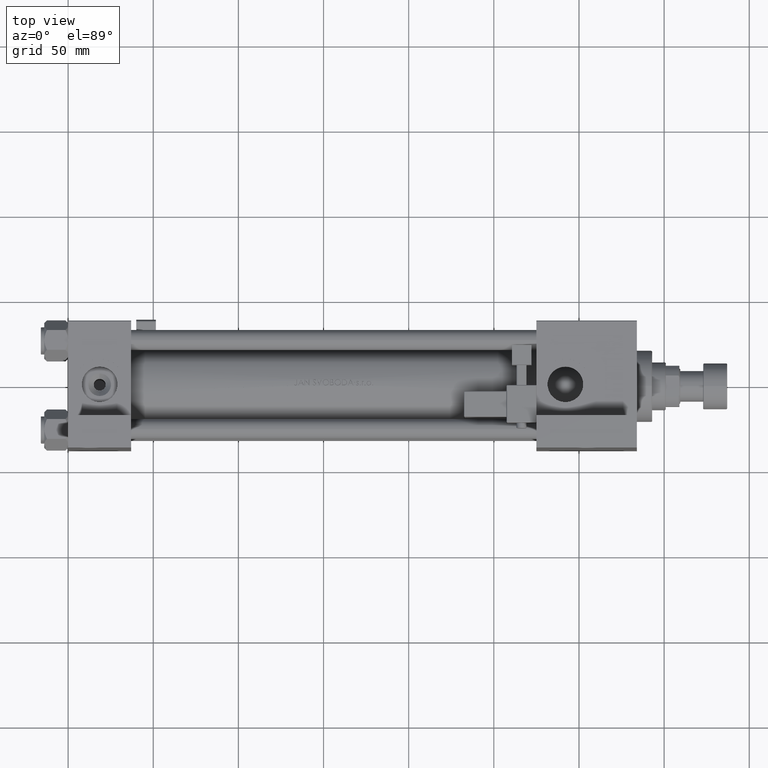
[diagram: clean part render]
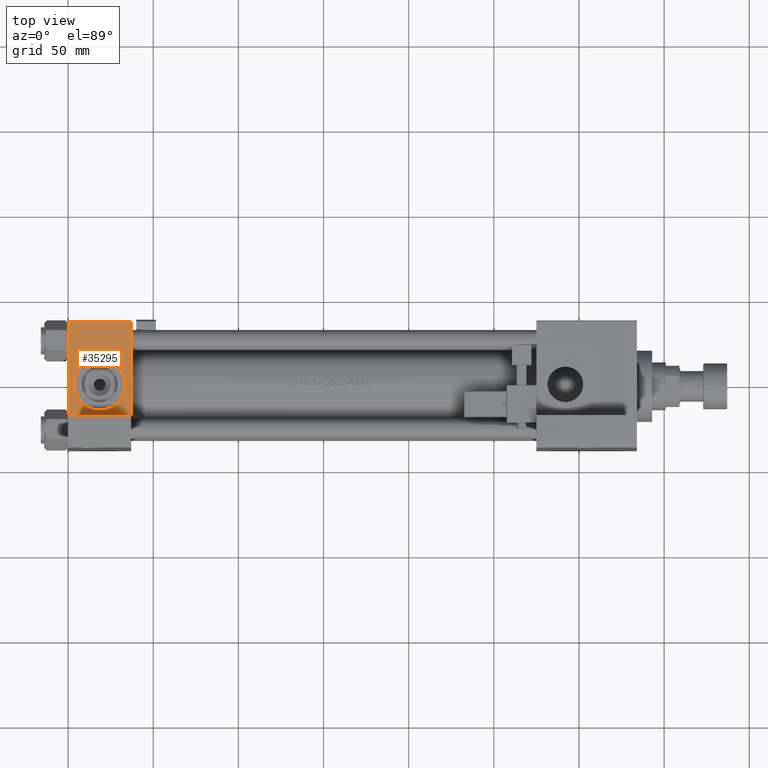
[diagram: same view with one face highlighted and labeled with its STEP entity id]
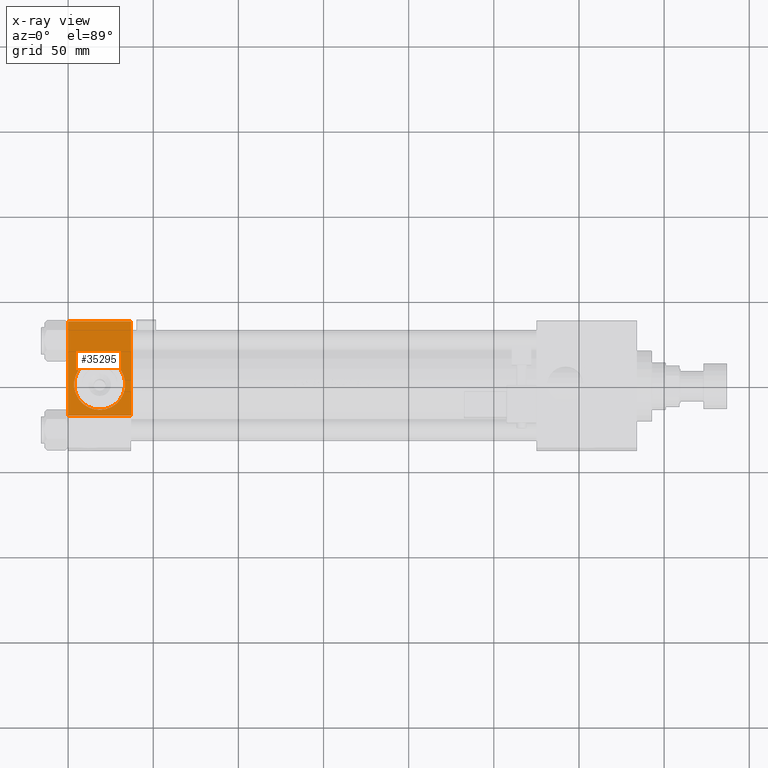
[diagram: x-ray of the same camera — body ghosted, the highlighted face saturated]
A machine part, top view. The second image highlights one B-rep face of the part: STEP entity #35295.
The next image is the same camera in x-ray: the body ghosted, the highlighted face saturated — about 0% of this face is hidden behind the body in this view.
In plain terms, the highlighted planar face has unit normal (0, 0, -1).
Its self-contained STEP definition (entity closure, byte-faithful):
#314 = ORIENTED_EDGE ( 'NONE', *, *, #6580, .F. ) ;
#883 = VERTEX_POINT ( 'NONE', #41602 ) ;
#2895 = AXIS2_PLACEMENT_3D ( 'NONE', #43908, #44435, #48658 ) ;
#3662 = VERTEX_POINT ( 'NONE', #5526 ) ;
#4255 = ORIENTED_EDGE ( 'NONE', *, *, #8362, .T. ) ;
#5526 = CARTESIAN_POINT ( 'NONE',  ( -7.145701223179004046E-16, -37.50000000000000711, -18.50000000000000355 ) ) ;
#6580 = EDGE_CURVE ( 'NONE', #24113, #3662, #20219, .T. ) ;
#6670 = DIRECTION ( 'NONE',  ( 0.000000000000000000, -1.000000000000000000, -8.673617379884036705E-17 ) ) ;
#6690 = EDGE_LOOP ( 'NONE', ( #35827, #40882 ) ) ;
#8361 = DIRECTION ( 'NONE',  ( -1.000000000000000000, 0.000000000000000000, 0.000000000000000000 ) ) ;
#8362 = EDGE_CURVE ( 'NONE', #14364, #3662, #36767, .T. ) ;
#10075 = ORIENTED_EDGE ( 'NONE', *, *, #16415, .F. ) ;
#10133 = VECTOR ( 'NONE', #32817, 1000.000000000000000 ) ;
#11687 = CARTESIAN_POINT ( 'NONE',  ( 18.50000000000000000, -37.50000000000000711, -3.469446951953614978E-15 ) ) ;
#12461 = EDGE_CURVE ( 'NONE', #34135, #883, #44014, .T. ) ;
#14358 = CARTESIAN_POINT ( 'NONE',  ( 37.00000000000000000, -37.50000000000000000, -18.50000000000000355 ) ) ;
#14364 = VERTEX_POINT ( 'NONE', #23944 ) ;
#16415 = EDGE_CURVE ( 'NONE', #34938, #24113, #18708, .T. ) ;
#16704 = CARTESIAN_POINT ( 'NONE',  ( 0.000000000000000000, -37.50000000000000711, 37.49999999999999289 ) ) ;
#17830 = DIRECTION ( 'NONE',  ( -1.000000000000000000, 0.000000000000000000, 0.000000000000000000 ) ) ;
#18269 = EDGE_CURVE ( 'NONE', #883, #34135, #41725, .T. ) ;
#18708 = LINE ( 'NONE', #47229, #23911 ) ;
#20219 = LINE ( 'NONE', #21270, #33799 ) ;
#20556 = FACE_BOUND ( 'NONE', #6690, .T. ) ;
#21270 = CARTESIAN_POINT ( 'NONE',  ( -7.145701223179000102E-16, -37.50000000000001421, -18.49999999999999645 ) ) ;
#22783 = DIRECTION ( 'NONE',  ( 0.000000000000000000, 0.000000000000000000, -1.000000000000000000 ) ) ;
#23446 = DIRECTION ( 'NONE',  ( 0.000000000000000000, 9.251858538542971581E-17, -1.000000000000000000 ) ) ;
#23744 = EDGE_LOOP ( 'NONE', ( #314, #10075, #29674, #4255 ) ) ;
#23911 = VECTOR ( 'NONE', #23446, 1000.000000000000000 ) ;
#23944 = CARTESIAN_POINT ( 'NONE',  ( 0.000000000000000000, -37.50000000000000711, 36.99999999999999289 ) ) ;
#24113 = VERTEX_POINT ( 'NONE', #14358 ) ;
#25854 = CARTESIAN_POINT ( 'NONE',  ( 37.00000000000000000, -37.50000000000000711, 37.49999999999999289 ) ) ;
#28793 = AXIS2_PLACEMENT_3D ( 'NONE', #11687, #6670, #22783 ) ;
#29674 = ORIENTED_EDGE ( 'NONE', *, *, #33308, .T. ) ;
#32817 = DIRECTION ( 'NONE',  ( 0.000000000000000000, 9.251858538542971581E-17, -1.000000000000000000 ) ) ;
#33217 = VECTOR ( 'NONE', #8361, 1000.000000000000000 ) ;
#33308 = EDGE_CURVE ( 'NONE', #34938, #14364, #36342, .T. ) ;
#33799 = VECTOR ( 'NONE', #17830, 1000.000000000000000 ) ;
#34135 = VERTEX_POINT ( 'NONE', #46712 ) ;
#34938 = VERTEX_POINT ( 'NONE', #34941 ) ;
#34941 = CARTESIAN_POINT ( 'NONE',  ( 37.00000000000000000, -37.50000000000000711, 36.99999999999999289 ) ) ;
#35295 = ADVANCED_FACE ( 'NONE', ( #20556, #36657 ), #37196, .F. ) ;
#35827 = ORIENTED_EDGE ( 'NONE', *, *, #18269, .F. ) ;
#36342 = LINE ( 'NONE', #44810, #33217 ) ;
#36657 = FACE_OUTER_BOUND ( 'NONE', #23744, .T. ) ;
#36767 = LINE ( 'NONE', #16704, #10133 ) ;
#37196 = PLANE ( 'NONE',  #41631 ) ;
#40882 = ORIENTED_EDGE ( 'NONE', *, *, #12461, .F. ) ;
#41170 = DIRECTION ( 'NONE',  ( 0.000000000000000000, -9.251858538542971581E-17, 1.000000000000000000 ) ) ;
#41602 = CARTESIAN_POINT ( 'NONE',  ( 18.50000000000000000, -37.50000000000000711, -15.00000000000000533 ) ) ;
#41631 = AXIS2_PLACEMENT_3D ( 'NONE', #25854, #50168, #41170 ) ;
#41725 = CIRCLE ( 'NONE', #2895, 15.00000000000000178 ) ;
#43908 = CARTESIAN_POINT ( 'NONE',  ( 18.50000000000000000, -37.50000000000000711, -3.469446951953614978E-15 ) ) ;
#44014 = CIRCLE ( 'NONE', #28793, 15.00000000000000178 ) ;
#44435 = DIRECTION ( 'NONE',  ( 0.000000000000000000, -1.000000000000000000, -8.673617379884036705E-17 ) ) ;
#44810 = CARTESIAN_POINT ( 'NONE',  ( 37.00000000000000000, -37.50000000000000711, 36.99999999999999289 ) ) ;
#46712 = CARTESIAN_POINT ( 'NONE',  ( 18.50000000000000355, -37.50000000000000711, 14.99999999999999822 ) ) ;
#47229 = CARTESIAN_POINT ( 'NONE',  ( 37.00000000000000000, -37.50000000000000711, 37.49999999999999289 ) ) ;
#48658 = DIRECTION ( 'NONE',  ( 0.000000000000000000, 0.000000000000000000, -1.000000000000000000 ) ) ;
#50168 = DIRECTION ( 'NONE',  ( -0.000000000000000000, 1.000000000000000000, 9.251858538542971581E-17 ) ) ;